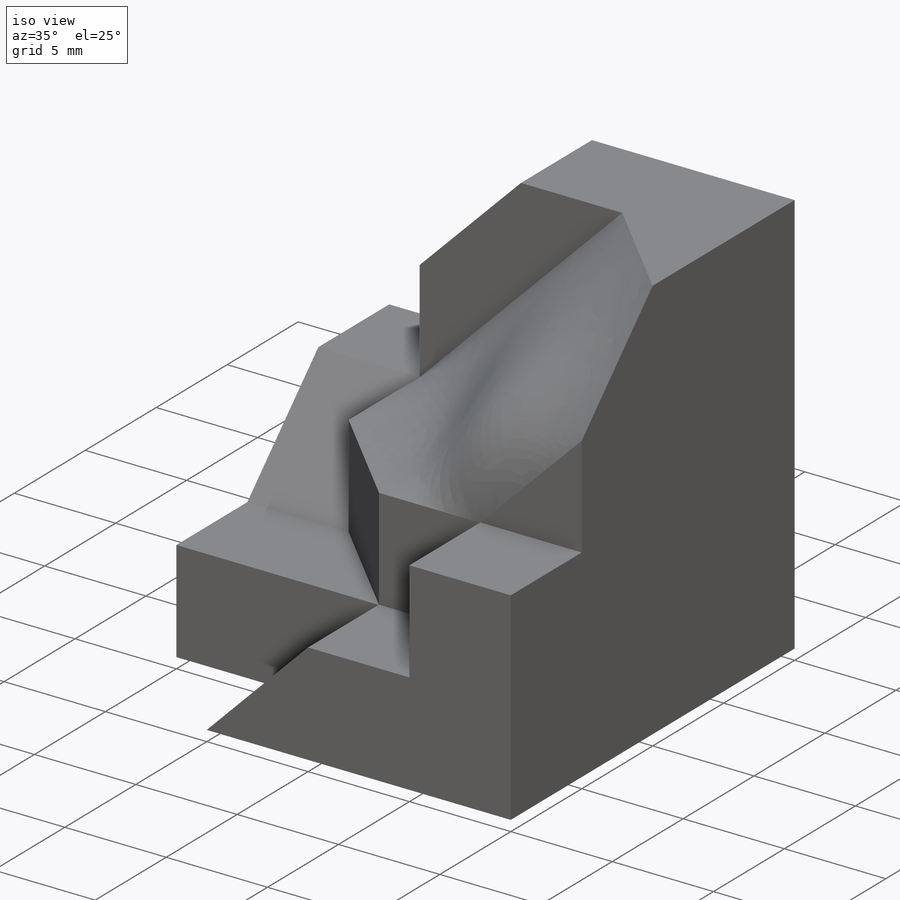
[diagram: iso view]
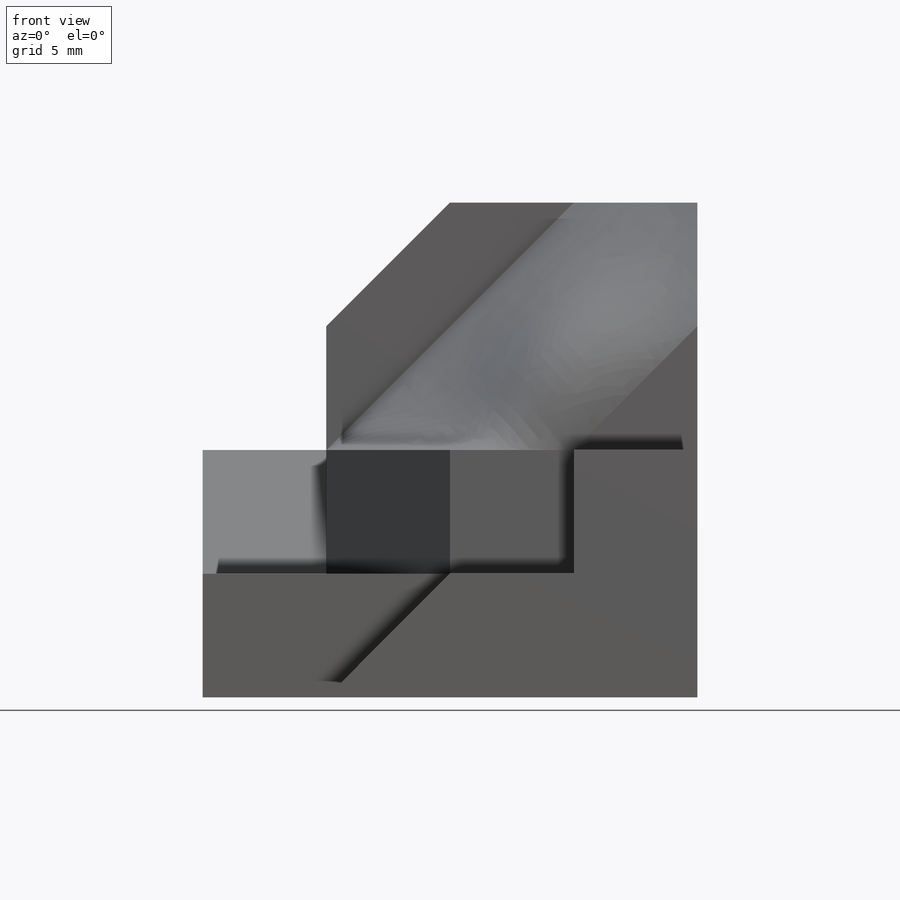
[diagram: front view]
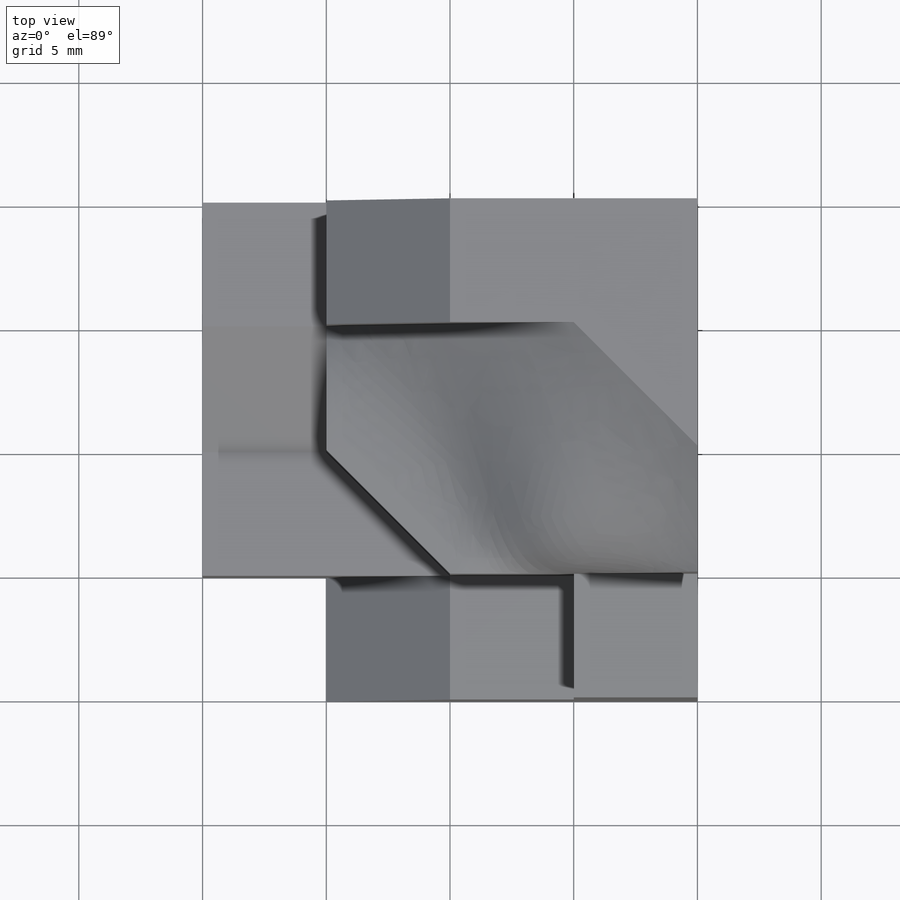
[diagram: top view]
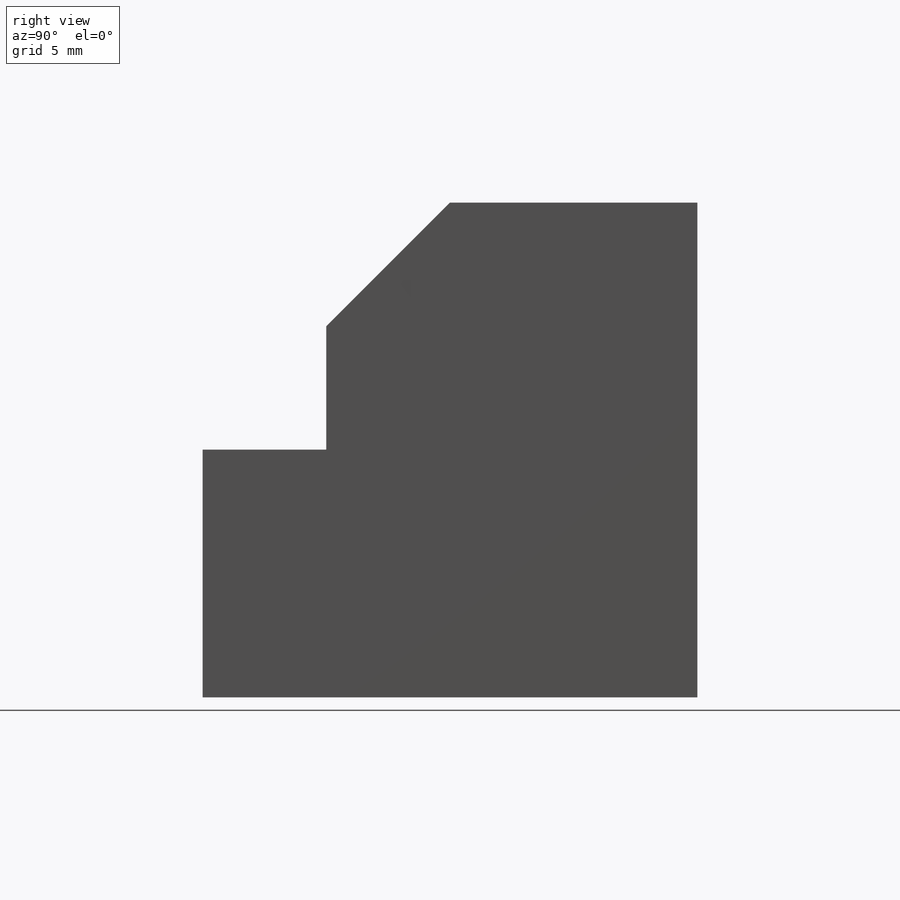
[diagram: right view]
SOLIDWORKS PART (.sldprt)
format: sldprt  version: not decoded by parser v0  size: 335,360 bytes
history: native  units: mm
features: sketch x8, extrude x6, cut_extrude x2, material x1, plane x1 (+13 scaffold rows collapsed)
feature tree (31):
  scaffold x13  (default folders/planes/origin — collapsed)
  material  "Material <not specified>"
  sketch  "Sketch1"  dims[D1=5.0mm D2=5.0mm D3=10.0mm D4=10.0mm]
  extrude  "Boss-Extrude1"  Depth=20mm
  sketch  "Sketch2"
  extrude  "Boss-Extrude2"  Depth=5mm
  sketch  "Sketch3"  dims[D1=5.0mm D2=5.0mm]
  cut_extrude  "Cut-Extrude1"  Depth=5mm
  sketch  "Sketch4"  dims[D1=10.0mm D2=5.0mm D3=10.0mm]
  extrude  "Boss-Extrude3"  Depth=5mm
  plane  "Plane1"
  sketch  "Sketch5"  dims[D1=10.0mm D2=5.0mm]
  extrude  "Boss-Extrude5"  Depth=20mm
  sketch  "3DSketch1"  dims[c1.D1=5.0mm c1.D2=5.0mm c1.D3=10.0mm c1.D4=10.0mm c2.D3=~11.680137mm c2.D8=~10.124228mm c2.D4=~4.980924mm c3.D3=5.0mm c3.D5=~8.644462mm c4.D3=10.0mm c4.D6=10.0mm c4.D7=5.0mm c5.D3=10.0mm c5.D4=5.0mm c5.D5=10.0mm c5.D8=10.0mm c6.D5=10.0mm c6.D8=10.0mm c6.D9=~7.071068mm c6.D10=~7.071068mm c7.D9=5.0mm]
  cut_extrude  "Cut-Extrude3"  Depth=28mm
  sketch  "Sketch6"  dims[D1=5.0mm D2=5.0mm D3=5.0mm D4=15.0mm]
  extrude  "Boss-Extrude7"  Depth=5mm
  sketch  "Sketch7"
  extrude  "Boss-Extrude8"  Depth=5mm
decode coverage: 14 of 16 modeling features carry decoded parameters
note: ~ marks probable driven/reference dimensions
note: suppression state not decoded; provenance and decode notes live in map.json
